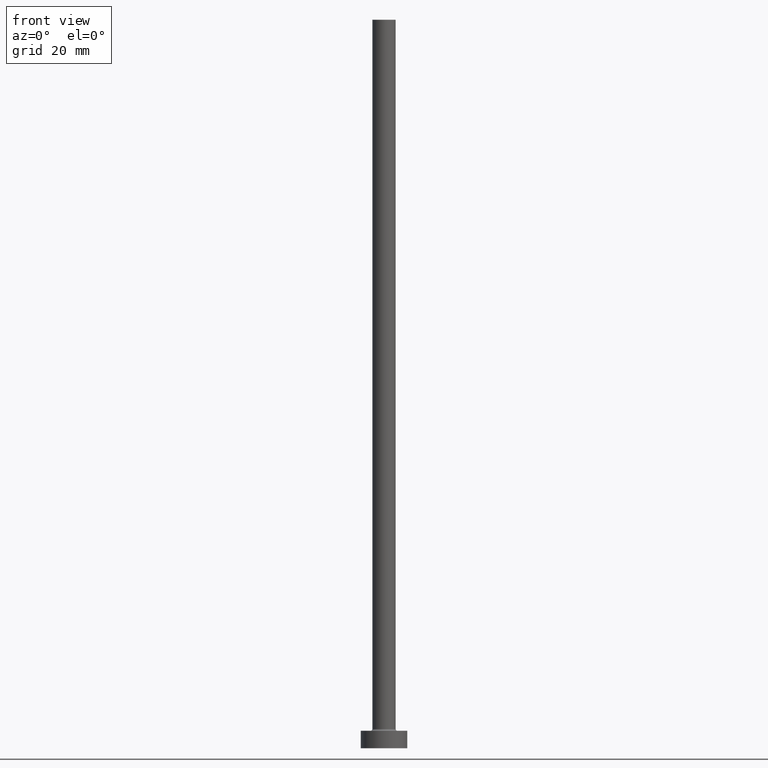
[diagram: clean part render]
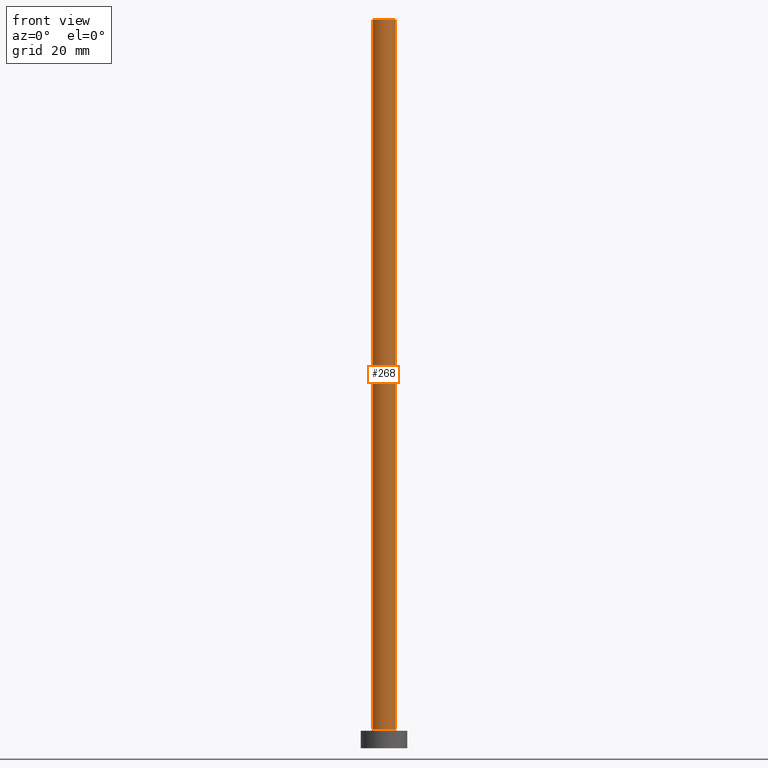
[diagram: same view with one face highlighted and labeled with its STEP entity id]
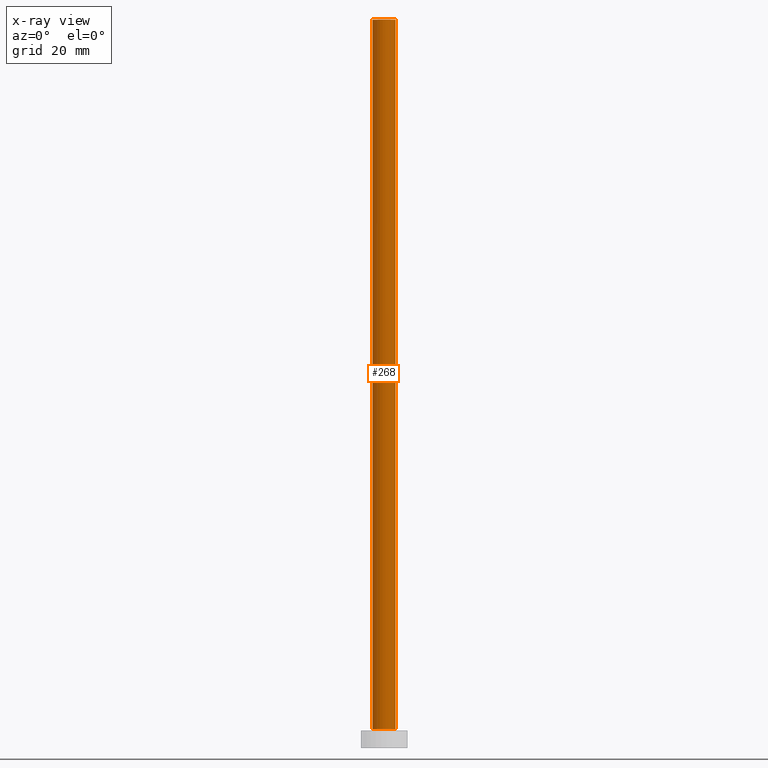
[diagram: x-ray of the same camera — body ghosted, the highlighted face saturated]
A machine part, front view. The second image highlights one B-rep face of the part: STEP entity #268.
The next image is the same camera in x-ray: the body ghosted, the highlighted face saturated — about 0% of this face is hidden behind the body in this view.
In plain terms, the highlighted cylindrical surface (edge-blend (fillet) strip) has radius 2 mm, axis along (-0, -0, -1).
Its self-contained STEP definition (entity closure, byte-faithful):
#12 = DIRECTION ( 'NONE',  ( -1.000000000000000000, 0.000000000000000000, 0.000000000000000000 ) ) ;
#19 = DIRECTION ( 'NONE',  ( -0.000000000000000000, -0.000000000000000000, -1.000000000000000000 ) ) ;
#21 = LINE ( 'NONE', #361, #49 ) ;
#44 = CIRCLE ( 'NONE', #362, 2.000000000000000000 ) ;
#49 = VECTOR ( 'NONE', #296, 1000.000000000000000 ) ;
#62 = AXIS2_PLACEMENT_3D ( 'NONE', #255, #19, #12 ) ;
#64 = EDGE_LOOP ( 'NONE', ( #129, #275, #168, #164 ) ) ;
#81 = CARTESIAN_POINT ( 'NONE',  ( 0.000000000000000000, 0.000000000000000000, 125.0000000000000000 ) ) ;
#83 = LINE ( 'NONE', #156, #417 ) ;
#129 = ORIENTED_EDGE ( 'NONE', *, *, #289, .F. ) ;
#141 = AXIS2_PLACEMENT_3D ( 'NONE', #81, #229, #220 ) ;
#156 = CARTESIAN_POINT ( 'NONE',  ( -2.000000000000000000, 0.000000000000000000, 125.0000000000000000 ) ) ;
#164 = ORIENTED_EDGE ( 'NONE', *, *, #352, .T. ) ;
#168 = ORIENTED_EDGE ( 'NONE', *, *, #368, .T. ) ;
#171 = CARTESIAN_POINT ( 'NONE',  ( 2.000000000000000000, 2.449293598294705921E-16, 125.0000000000000000 ) ) ;
#220 = DIRECTION ( 'NONE',  ( 1.000000000000000000, 0.000000000000000000, 0.000000000000000000 ) ) ;
#227 = VERTEX_POINT ( 'NONE', #171 ) ;
#229 = DIRECTION ( 'NONE',  ( 0.000000000000000000, 0.000000000000000000, 1.000000000000000000 ) ) ;
#255 = CARTESIAN_POINT ( 'NONE',  ( 0.000000000000000000, 0.000000000000000000, 125.0000000000000000 ) ) ;
#258 = EDGE_CURVE ( 'NONE', #407, #227, #453, .T. ) ;
#260 = VERTEX_POINT ( 'NONE', #371 ) ;
#268 = ADVANCED_FACE ( 'NONE', ( #365 ), #290, .T. ) ;
#275 = ORIENTED_EDGE ( 'NONE', *, *, #258, .F. ) ;
#289 = EDGE_CURVE ( 'NONE', #227, #421, #21, .T. ) ;
#290 = CYLINDRICAL_SURFACE ( 'NONE', #62, 2.000000000000000000 ) ;
#296 = DIRECTION ( 'NONE',  ( -0.000000000000000000, -0.000000000000000000, -1.000000000000000000 ) ) ;
#298 = CARTESIAN_POINT ( 'NONE',  ( 0.000000000000000000, 0.000000000000000000, 3.299999999999997158 ) ) ;
#352 = EDGE_CURVE ( 'NONE', #260, #421, #44, .T. ) ;
#361 = CARTESIAN_POINT ( 'NONE',  ( 2.000000000000000000, 2.449293598294705921E-16, 125.0000000000000000 ) ) ;
#362 = AXIS2_PLACEMENT_3D ( 'NONE', #298, #440, #408 ) ;
#365 = FACE_OUTER_BOUND ( 'NONE', #64, .T. ) ;
#368 = EDGE_CURVE ( 'NONE', #407, #260, #83, .T. ) ;
#371 = CARTESIAN_POINT ( 'NONE',  ( -2.000000000000000000, 0.000000000000000000, 3.299999999999997158 ) ) ;
#407 = VERTEX_POINT ( 'NONE', #450 ) ;
#408 = DIRECTION ( 'NONE',  ( 1.000000000000000000, 0.000000000000000000, 0.000000000000000000 ) ) ;
#413 = CARTESIAN_POINT ( 'NONE',  ( 2.000000000000000000, 2.449293598294705921E-16, 3.299999999999997158 ) ) ;
#417 = VECTOR ( 'NONE', #439, 1000.000000000000000 ) ;
#421 = VERTEX_POINT ( 'NONE', #413 ) ;
#439 = DIRECTION ( 'NONE',  ( -0.000000000000000000, -0.000000000000000000, -1.000000000000000000 ) ) ;
#440 = DIRECTION ( 'NONE',  ( 0.000000000000000000, 0.000000000000000000, 1.000000000000000000 ) ) ;
#450 = CARTESIAN_POINT ( 'NONE',  ( -2.000000000000000000, 0.000000000000000000, 125.0000000000000000 ) ) ;
#453 = CIRCLE ( 'NONE', #141, 2.000000000000000000 ) ;